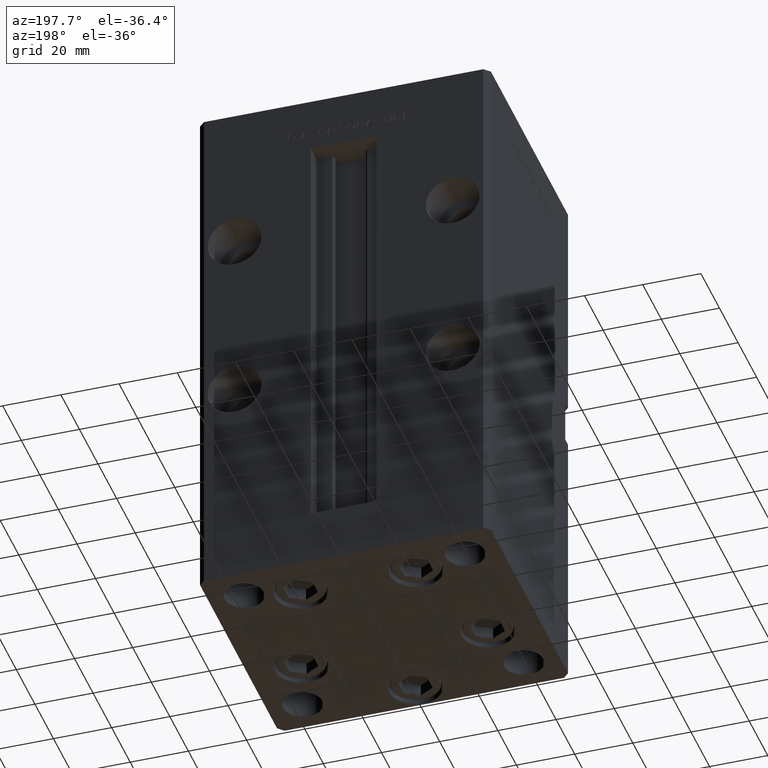
[diagram: clean part render]
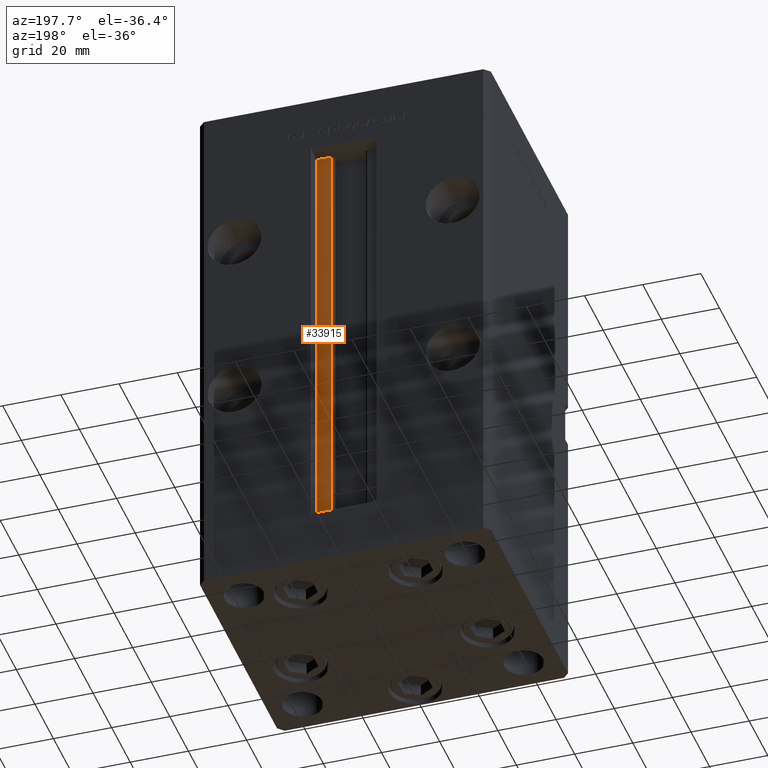
[diagram: same view with one face highlighted and labeled with its STEP entity id]
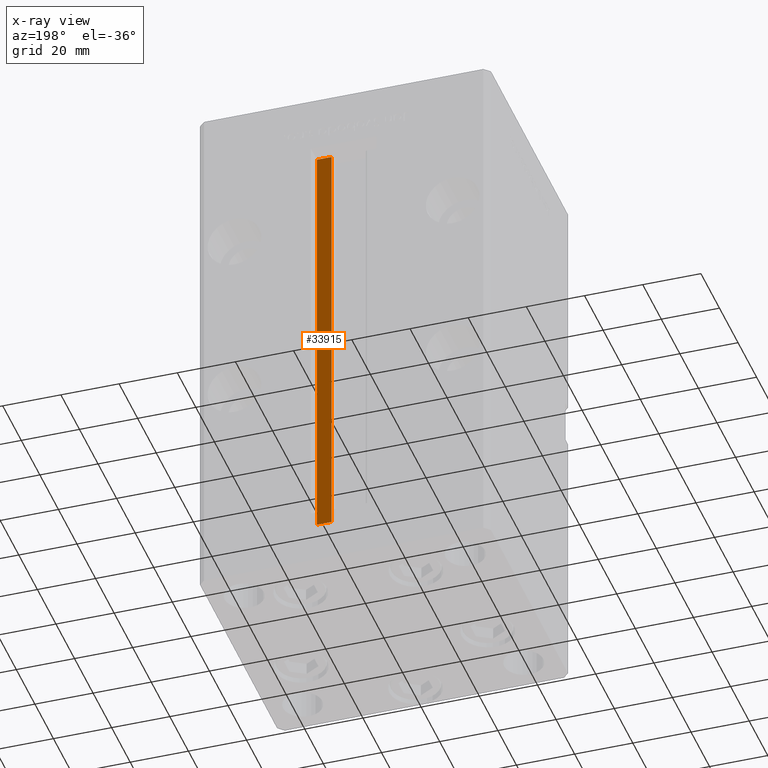
[diagram: x-ray of the same camera — body ghosted, the highlighted face saturated]
A machine part, auxiliary view. The second image highlights one B-rep face of the part: STEP entity #33915.
The next image is the same camera in x-ray: the body ghosted, the highlighted face saturated — about 0% of this face is hidden behind the body in this view.
In plain terms, the highlighted planar face has unit normal (0, -1, 0).
Its self-contained STEP definition (entity closure, byte-faithful):
#669 = VERTEX_POINT ( 'NONE', #49193 ) ;
#1283 = ORIENTED_EDGE ( 'NONE', *, *, #5073, .F. ) ;
#2565 = AXIS2_PLACEMENT_3D ( 'NONE', #26464, #42566, #2813 ) ;
#2813 = DIRECTION ( 'NONE',  ( 0.000000000000000000, -0.000000000000000000, -1.000000000000000000 ) ) ;
#4308 = CARTESIAN_POINT ( 'NONE',  ( 11.24999999999999645, 37.00000000000000000, 0.000000000000000000 ) ) ;
#4654 = LINE ( 'NONE', #32596, #18749 ) ;
#5073 = EDGE_CURVE ( 'NONE', #669, #48681, #31042, .T. ) ;
#5859 = VERTEX_POINT ( 'NONE', #48437 ) ;
#5861 = ORIENTED_EDGE ( 'NONE', *, *, #22318, .F. ) ;
#6014 = CARTESIAN_POINT ( 'NONE',  ( 6.183333333333996151, 37.00000000000000000, 0.000000000000000000 ) ) ;
#6793 = CARTESIAN_POINT ( 'NONE',  ( 6.183333333333996151, 37.00000000000000000, 0.000000000000000000 ) ) ;
#7480 = VECTOR ( 'NONE', #32246, 1000.000000000000000 ) ;
#7614 = DIRECTION ( 'NONE',  ( -0.000000000000000000, -0.000000000000000000, 1.000000000000000000 ) ) ;
#10421 = VECTOR ( 'NONE', #14919, 1000.000000000000000 ) ;
#11415 = VERTEX_POINT ( 'NONE', #6014 ) ;
#12725 = VECTOR ( 'NONE', #39557, 1000.000000000000000 ) ;
#14919 = DIRECTION ( 'NONE',  ( -1.000000000000000000, 0.000000000000000000, 0.000000000000000000 ) ) ;
#18749 = VECTOR ( 'NONE', #7614, 1000.000000000000000 ) ;
#18935 = PLANE ( 'NONE',  #2565 ) ;
#22318 = EDGE_CURVE ( 'NONE', #5859, #669, #36270, .T. ) ;
#23179 = ORIENTED_EDGE ( 'NONE', *, *, #29308, .F. ) ;
#26464 = CARTESIAN_POINT ( 'NONE',  ( 6.183333333333996151, 37.00000000000000000, 0.000000000000000000 ) ) ;
#29308 = EDGE_CURVE ( 'NONE', #11415, #5859, #43577, .T. ) ;
#31042 = LINE ( 'NONE', #51732, #10421 ) ;
#31204 = EDGE_CURVE ( 'NONE', #11415, #48681, #4654, .T. ) ;
#32246 = DIRECTION ( 'NONE',  ( -0.000000000000000000, -0.000000000000000000, 1.000000000000000000 ) ) ;
#32596 = CARTESIAN_POINT ( 'NONE',  ( 6.183333333333996151, 37.00000000000000000, 0.000000000000000000 ) ) ;
#32933 = CARTESIAN_POINT ( 'NONE',  ( 6.183333333333996151, 37.00000000000000000, 148.5000000000000000 ) ) ;
#33915 = ADVANCED_FACE ( 'NONE', ( #34787 ), #18935, .F. ) ;
#34787 = FACE_OUTER_BOUND ( 'NONE', #51972, .T. ) ;
#36270 = LINE ( 'NONE', #4308, #7480 ) ;
#39557 = DIRECTION ( 'NONE',  ( 1.000000000000000000, 0.000000000000000000, 0.000000000000000000 ) ) ;
#41275 = ORIENTED_EDGE ( 'NONE', *, *, #31204, .T. ) ;
#42566 = DIRECTION ( 'NONE',  ( 0.000000000000000000, -1.000000000000000000, 0.000000000000000000 ) ) ;
#43577 = LINE ( 'NONE', #6793, #12725 ) ;
#48437 = CARTESIAN_POINT ( 'NONE',  ( 11.24999999999999645, 37.00000000000000000, 0.000000000000000000 ) ) ;
#48681 = VERTEX_POINT ( 'NONE', #32933 ) ;
#49193 = CARTESIAN_POINT ( 'NONE',  ( 11.24999999999999645, 37.00000000000000000, 148.5000000000000000 ) ) ;
#51732 = CARTESIAN_POINT ( 'NONE',  ( 0.000000000000000000, 37.00000000000000000, 148.5000000000000000 ) ) ;
#51972 = EDGE_LOOP ( 'NONE', ( #5861, #23179, #41275, #1283 ) ) ;